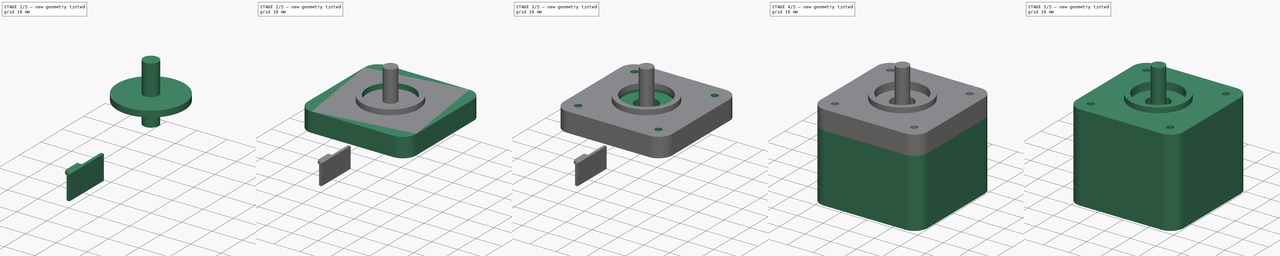
[diagram: build sequence overview — one tinted view per stage of 5, left to right]
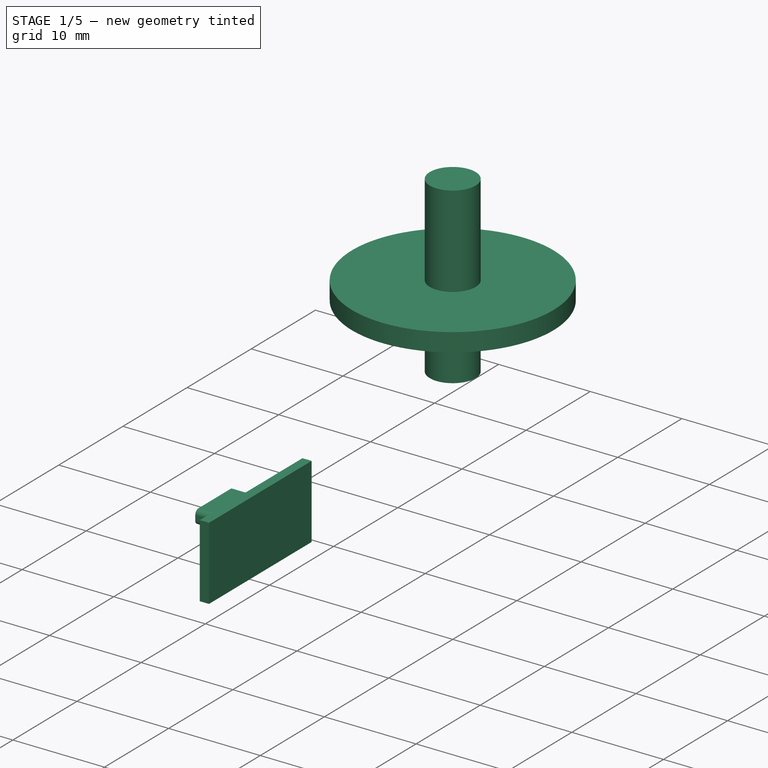
[diagram: stage 1 of 5 — iso view after this stage's code; geometry added in this stage tinted green]
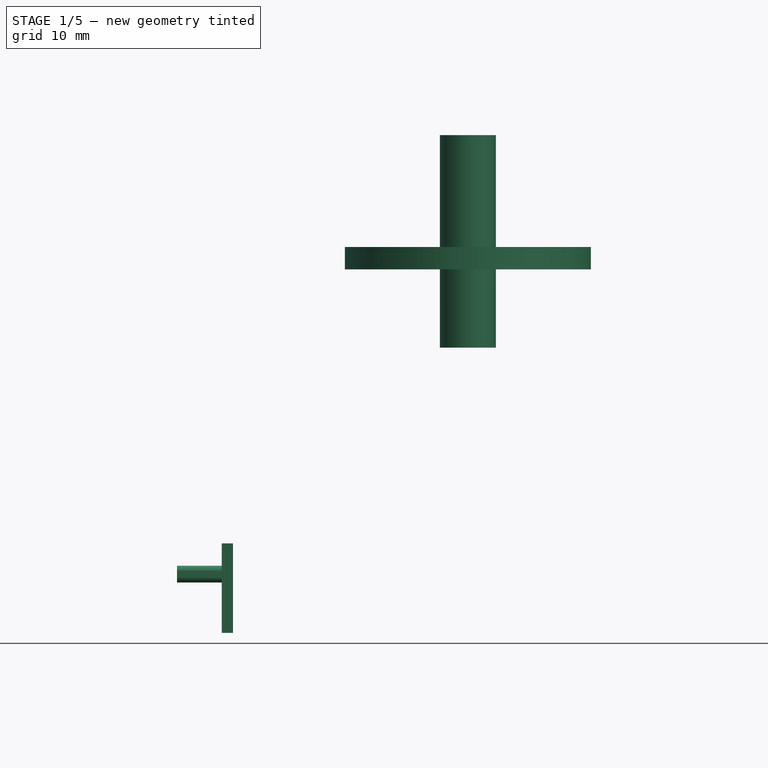
[diagram: stage 1 of 5 — front view after this stage's code; geometry added in this stage tinted green]
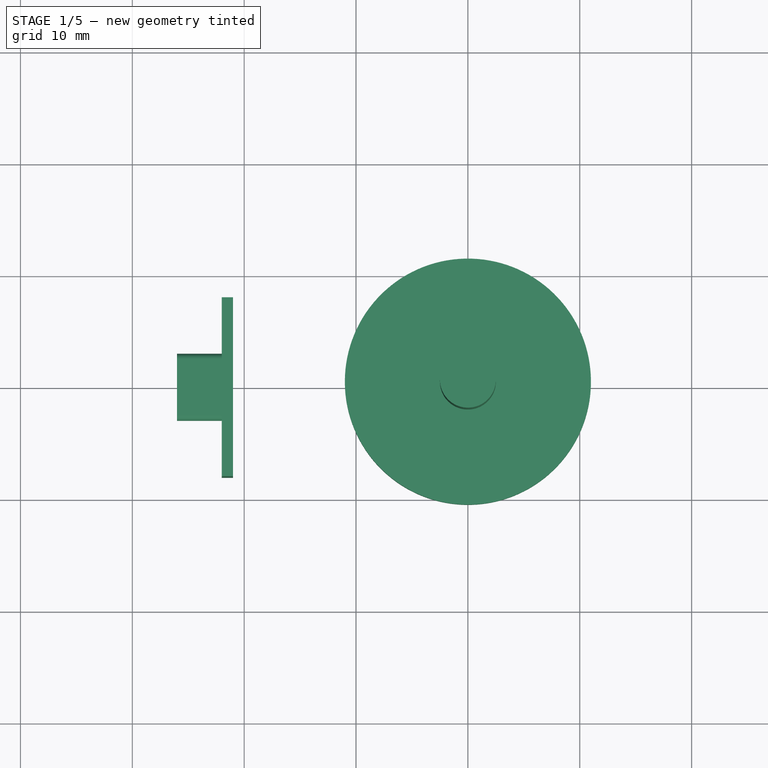
[diagram: stage 1 of 5 — top view after this stage's code; geometry added in this stage tinted green]
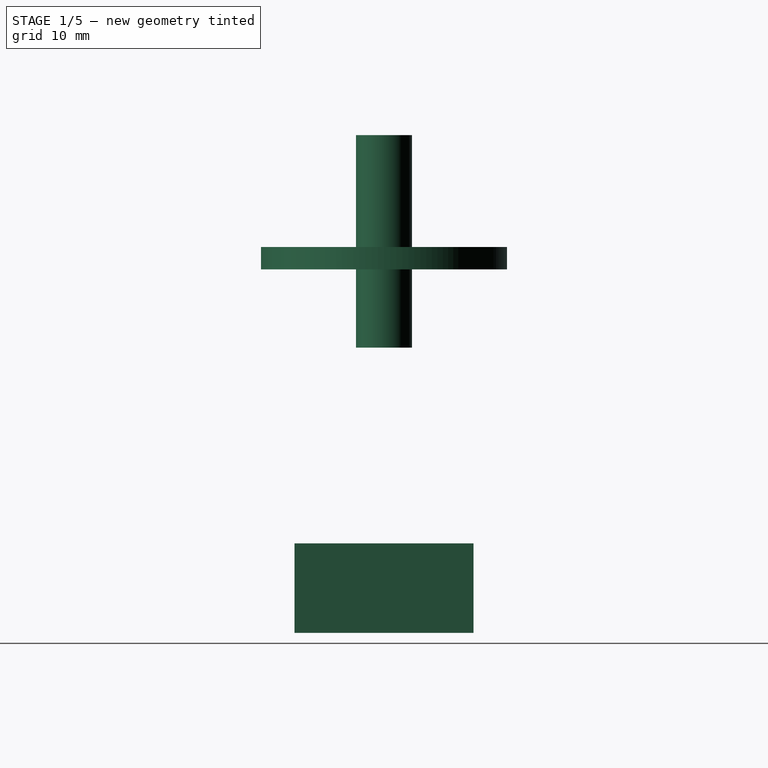
[diagram: stage 1 of 5 — right view after this stage's code; geometry added in this stage tinted green]
FCSTD DOCUMENT  (FreeCAD 0.16R6704 (Git))
Label: 17PM-K044
License: All rights reserved
LicenseURL: http://en.wikipedia.org/wiki/All_rights_reserved
objects: Sketcher::SketchObject×11, PartDesign::Pad×7, Part::Fuse×5, PartDesign::Pocket×4, Part::Common×1, Part::MultiFuse×1
note: 40 computed .brp shape members not serialized (recipe doc carries the construction recipe); baked Part::Feature solids carry a one-line shape summary decoded from their .brp

FEATURE [Sketcher::SketchObject] Sketch006
  Placement = pos=(0,0,34) rot=(0,0,1;0rad)
  sketch-geometry (1):
    g0: Circle CenterX=0 CenterY=0 CenterZ=0 NormalX=0 NormalY=0 NormalZ=1 Radius=11
  constraints (2):
    c: Radius(g0) = 11
    c: Coincident(g0,g-1)
FEATURE [PartDesign::Pad] Pad003  label="上部突起パッド"
  Length = 2
  Length2 = 100
  Placement = pos=(0,0,34) rot=(0,0,1;0rad)
  Sketch = -> Sketch006
  Type = 0
FEATURE [Sketcher::SketchObject] Sketch008
  Placement = pos=(0,0,27) rot=(0,0,1;0rad)
  sketch-geometry (1):
    g0: Circle CenterX=0 CenterY=0 CenterZ=0 NormalX=0 NormalY=0 NormalZ=1 Radius=2.5
  constraints (2):
    c: Radius(g0) = 2.5
    c: Coincident(g0,g-1)
FEATURE [PartDesign::Pad] Pad004  label="軸"
  Length = 19
  Length2 = 100
  Placement = pos=(0,0,27) rot=(0,0,1;0rad)
  Sketch = -> Sketch008
  Type = 0
FEATURE [Sketcher::SketchObject] Sketch010
  Placement = pos=(-21,0,0) rot=(0.57735,0.57735,0.57735;2.0944rad)
  sketch-geometry (4):
    g0: LineSegment StartX=8 StartY=9.5 StartZ=0 EndX=-8 EndY=9.5 EndZ=0
    g1: LineSegment StartX=-8 StartY=9.5 StartZ=0 EndX=-8 EndY=1.5 EndZ=0
    g2: LineSegment StartX=-8 StartY=1.5 StartZ=0 EndX=8 EndY=1.5 EndZ=0
    g3: LineSegment StartX=8 StartY=1.5 StartZ=0 EndX=8 EndY=9.5 EndZ=0
  constraints (12):
    c: Coincident(g0,g1)
    c: Coincident(g1,g2)
    c: Coincident(g2,g3)
    c: Coincident(g3,g0)
    c: Horizontal(g0)
    c: Horizontal(g2)
    c: Vertical(g1)
    c: Vertical(g3)
    c: DistanceX(g0,g0) = 16
    c: DistanceY(g1,g1) = 8
    c: DistanceY(g0) = 9.5
    c: Symmetric(g1,g2,g-2)
FEATURE [PartDesign::Pad] Pad006  label="ワイヤターミナル"
  Length = 1
  Length2 = 100
  Placement = pos=(-21,0,0) rot=(0.57735,0.57735,0.57735;2.0944rad)
  Reversed = true
  Sketch = -> Sketch010
  Type = 0
FEATURE [Sketcher::SketchObject] Sketch011
  Placement = pos=(-22,0,0) rot=(0.57735,0.57735,0.57735;2.0944rad)
  sketch-geometry (8):
    g0: LineSegment StartX=2.5 StartY=7.5 StartZ=0 EndX=-2.5 EndY=7.5 EndZ=0
    g1: LineSegment StartX=-3 StartY=7 StartZ=0 EndX=-3 EndY=6.5 EndZ=0
    g2: LineSegment StartX=-2.5 StartY=6 StartZ=0 EndX=2.5 EndY=6 EndZ=0
    g3: LineSegment StartX=3 StartY=6.5 StartZ=0 EndX=3 EndY=7 EndZ=0
    g4: ArcOfCircle CenterX=2.5 CenterY=7 CenterZ=0 NormalX=0 NormalY=0 NormalZ=1 Radius=0.5 StartAngle=0 EndAngle=1.5708
    g5: ArcOfCircle CenterX=2.5 CenterY=6.5 CenterZ=0 NormalX=0 NormalY=0 NormalZ=1 Radius=0.5 StartAngle=4.71239 EndAngle=6.28319
    g6: ArcOfCircle CenterX=-2.5 CenterY=6.5 CenterZ=0 NormalX=0 NormalY=0 NormalZ=1 Radius=0.5 StartAngle=3.14159 EndAngle=4.71239
    g7: ArcOfCircle CenterX=-2.5 CenterY=7 CenterZ=0 NormalX=0 NormalY=0 NormalZ=1 Radius=0.5 StartAngle=1.5708 EndAngle=3.14159
  constraints (20):
    c: Horizontal(g0)
    c: Horizontal(g2)
    c: Vertical(g1)
    c: Vertical(g3)
    c: Tangent(g0,g4) = -1.5708
    c: Tangent(g3,g4) = -1.5708
    c: Tangent(g2,g5) = -1.5708
    c: Tangent(g3,g5) = -1.5708
    c: Tangent(g2,g6) = -1.5708
    c: Tangent(g1,g6) = -1.5708
    c: Tangent(g1,g7) = -1.5708
    c: Tangent(g0,g7) = -1.5708
    c: Radius(g5) = 0.5
    c: Radius(g4) = 0.5
    c: Radius(g7) = 0.5
    c: Radius(g6) = 0.5
    c: DistanceY(g1,g1) = 0.5
    c: DistanceX(g2,g2) = 5
    c: Symmetric(g4,g7,g-2)
    c: DistanceY(g5) = 6.5
FEATURE [PartDesign::Pad] Pad007  label="ワイヤ"
  Length = 4
  Length2 = 100
  Placement = pos=(-22,0,0) rot=(0.57735,0.57735,0.57735;2.0944rad)
  Reversed = true
  Sketch = -> Sketch011
  Type = 0
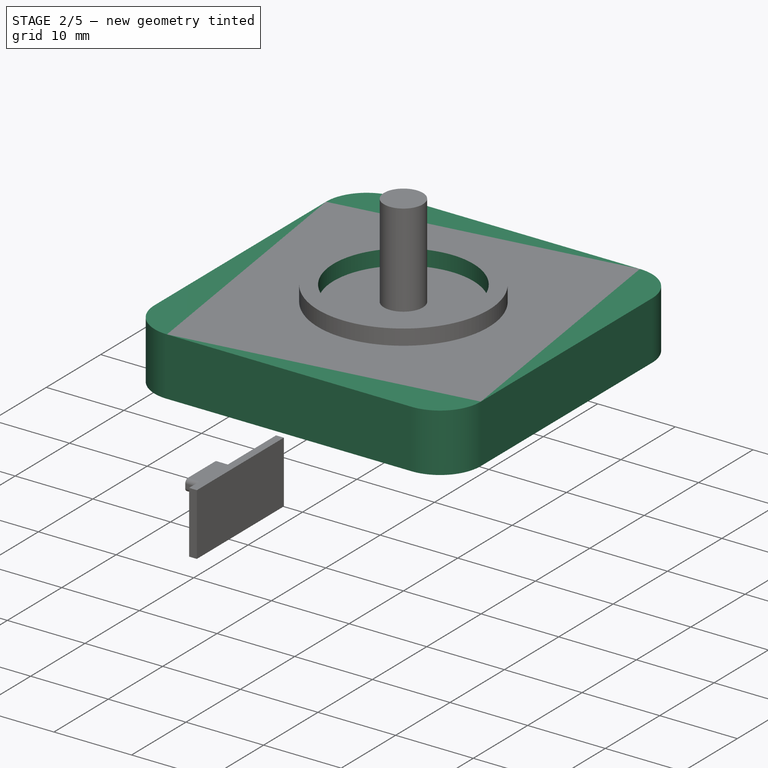
[diagram: stage 2 of 5 — iso view after this stage's code; geometry added in this stage tinted green]
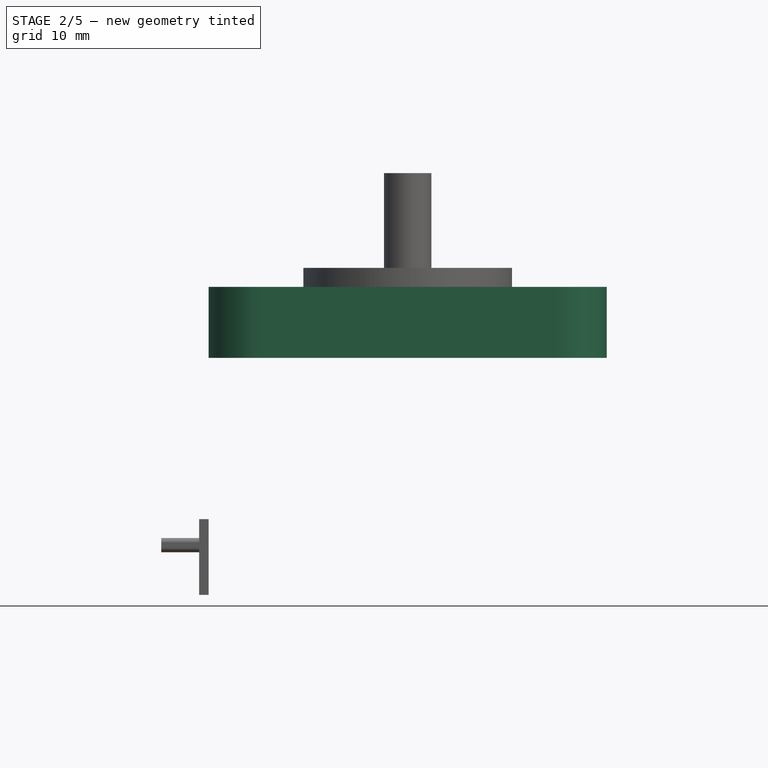
[diagram: stage 2 of 5 — front view after this stage's code; geometry added in this stage tinted green]
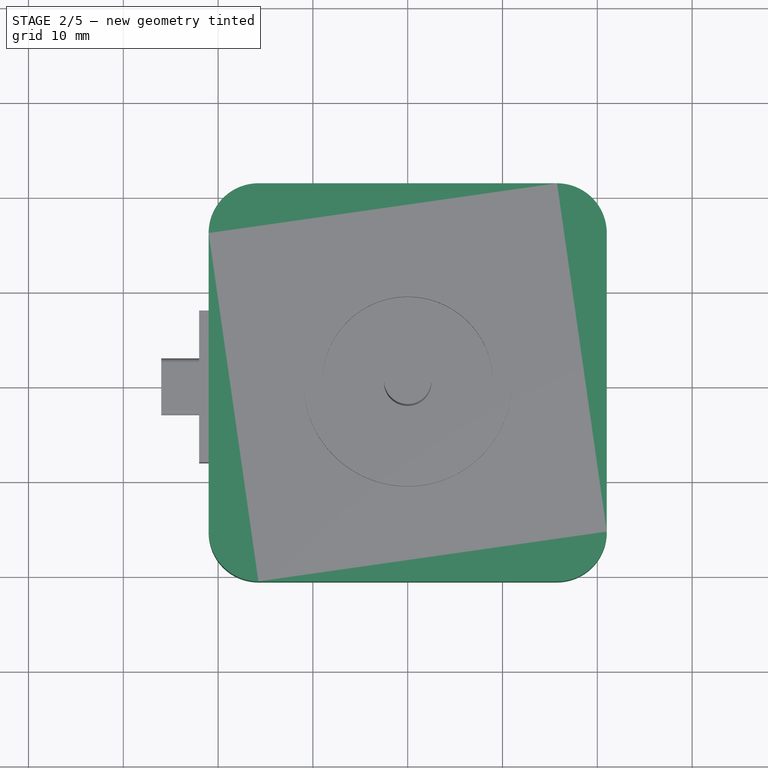
[diagram: stage 2 of 5 — top view after this stage's code; geometry added in this stage tinted green]
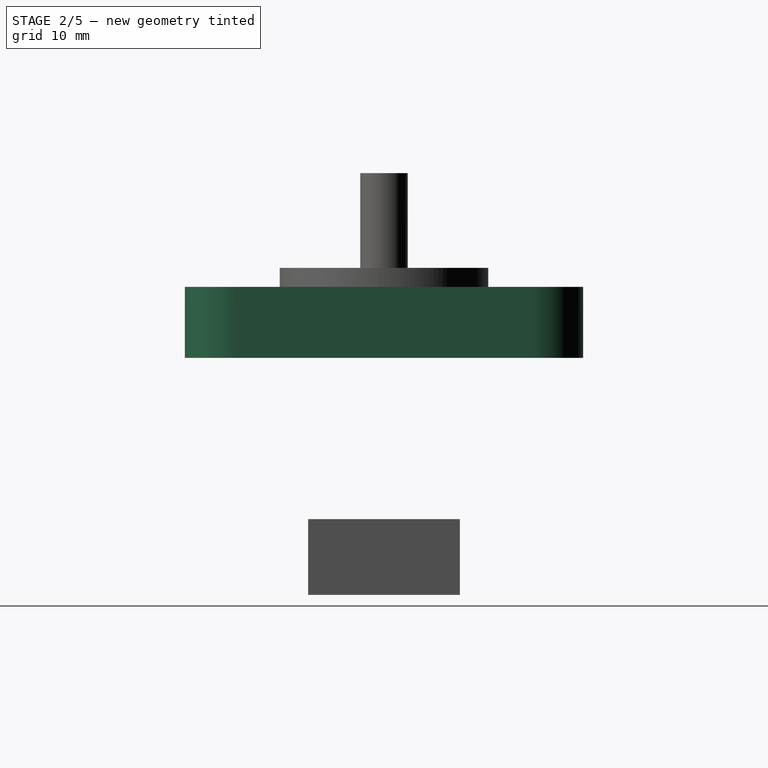
[diagram: stage 2 of 5 — right view after this stage's code; geometry added in this stage tinted green]
FEATURE [Sketcher::SketchObject] Sketch002  label="上面スケッチ"
  Placement = pos=(0,0,26.5) rot=(0,0,1;0rad)
  sketch-geometry (8):
    g0: LineSegment StartX=-15.75 StartY=21 StartZ=0 EndX=15.75 EndY=21 EndZ=0
    g1: LineSegment StartX=21 StartY=15.75 StartZ=0 EndX=21 EndY=-15.75 EndZ=0
    g2: LineSegment StartX=15.75 StartY=-21 StartZ=0 EndX=-15.75 EndY=-21 EndZ=0
    g3: LineSegment StartX=-21 StartY=-15.75 StartZ=0 EndX=-21 EndY=15.75 EndZ=0
    g4: ArcOfCircle CenterX=15.75 CenterY=15.75 CenterZ=0 NormalX=0 NormalY=0 NormalZ=1 Radius=5.25 StartAngle=0 EndAngle=1.5708
    g5: ArcOfCircle CenterX=-15.75 CenterY=15.75 CenterZ=0 NormalX=0 NormalY=0 NormalZ=1 Radius=5.25 StartAngle=1.5708 EndAngle=3.14159
    g6: ArcOfCircle CenterX=-15.75 CenterY=-15.75 CenterZ=0 NormalX=0 NormalY=0 NormalZ=1 Radius=5.25 StartAngle=3.14159 EndAngle=4.71239
    g7: ArcOfCircle CenterX=15.75 CenterY=-15.75 CenterZ=0 NormalX=0 NormalY=0 NormalZ=1 Radius=5.25 StartAngle=4.71239 EndAngle=6.28319
  constraints (19):
    c: Horizontal(g0)
    c: Horizontal(g2)
    c: Vertical(g1)
    c: Vertical(g3)
    c: Tangent(g1,g4) = 1.5708
    c: Tangent(g0,g4) = 1.5708
    c: Tangent(g3,g5) = 1.5708
    c: Tangent(g0,g5) = 1.5708
    c: Tangent(g3,g6) = 1.5708
    c: Tangent(g2,g6) = 1.5708
    c: Tangent(g2,g7) = 1.5708
    c: Tangent(g1,g7) = 1.5708
    c: DistanceX(g0,g0) = 31.5
    c: DistanceY(g3,g3) = 31.5
    c: Radius(g5) = 5.25
    c: Radius(g4) = 5.25
    c: Radius(g7) = 5.25
    c: Symmetric(g0,g2,g-1)
    c: Symmetric(g3,g1,g-2)
FEATURE [PartDesign::Pad] Pad002  label="上部シルバー"
  Length = 7.5
  Length2 = 100
  Placement = pos=(0,0,26.5) rot=(0,0,1;0rad)
  Sketch = -> Sketch002
  Type = 0
FEATURE [Sketcher::SketchObject] Sketch007
  Placement = pos=(0,0,36) rot=(0,0,1;0rad)
  Support = -> Pad003 [Face3]
  sketch-geometry (1):
    g0: Circle CenterX=0 CenterY=0 CenterZ=0 NormalX=0 NormalY=0 NormalZ=1 Radius=9
  constraints (2):
    c: Radius(g0) = 9
    c: Coincident(g0,g-1)
FEATURE [PartDesign::Pocket] Pocket003  label="上部突起リング"
  Length = 2
  Placement = pos=(0,0,34) rot=(0,0,1;0rad)
  Sketch = -> Sketch007
  Type = 0
FEATURE [Part::Fuse] Fusion001
  Base = -> Pocket003
  Tool = -> Pad004
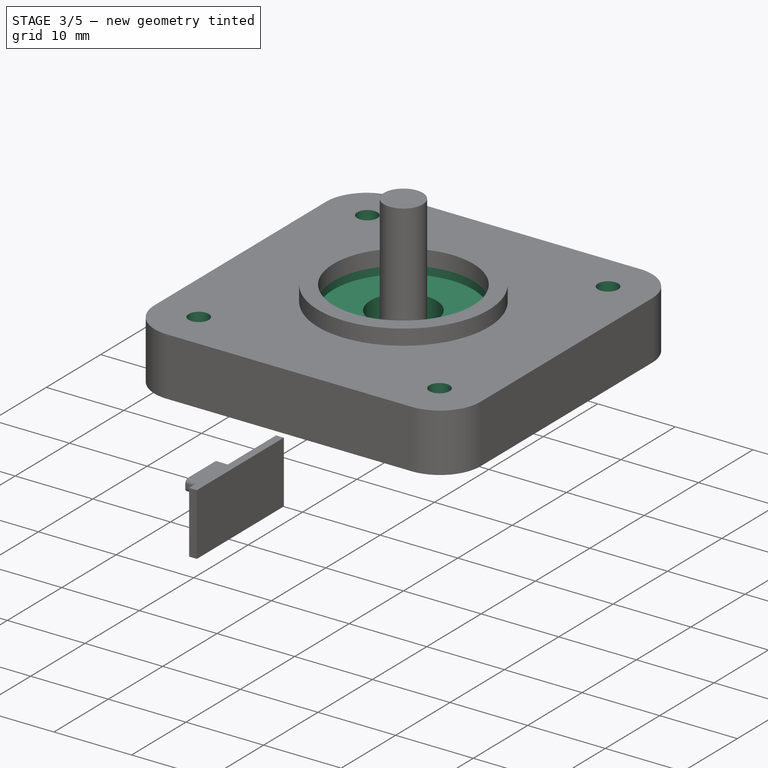
[diagram: stage 3 of 5 — iso view after this stage's code; geometry added in this stage tinted green]
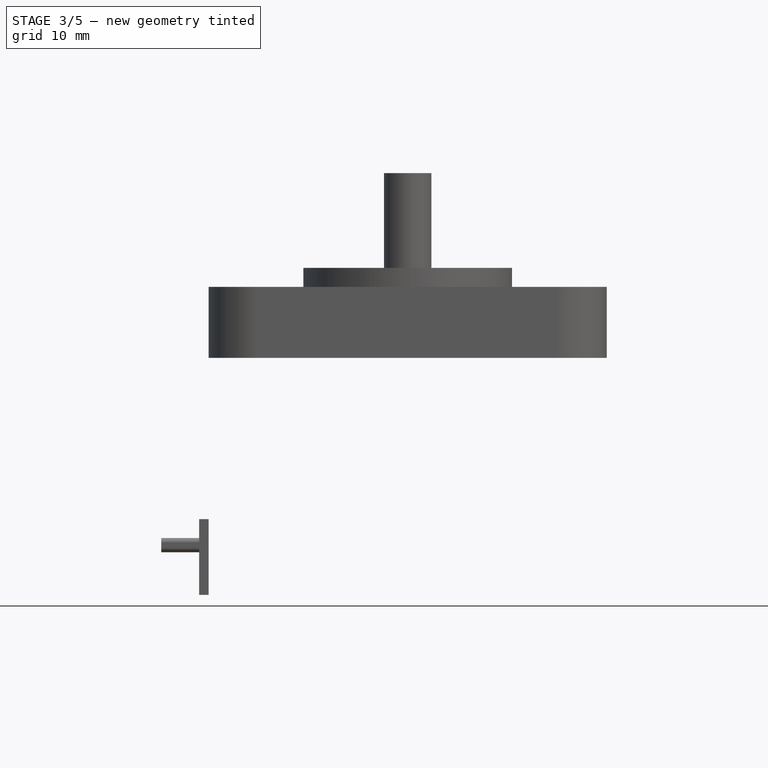
[diagram: stage 3 of 5 — front view after this stage's code; geometry added in this stage tinted green]
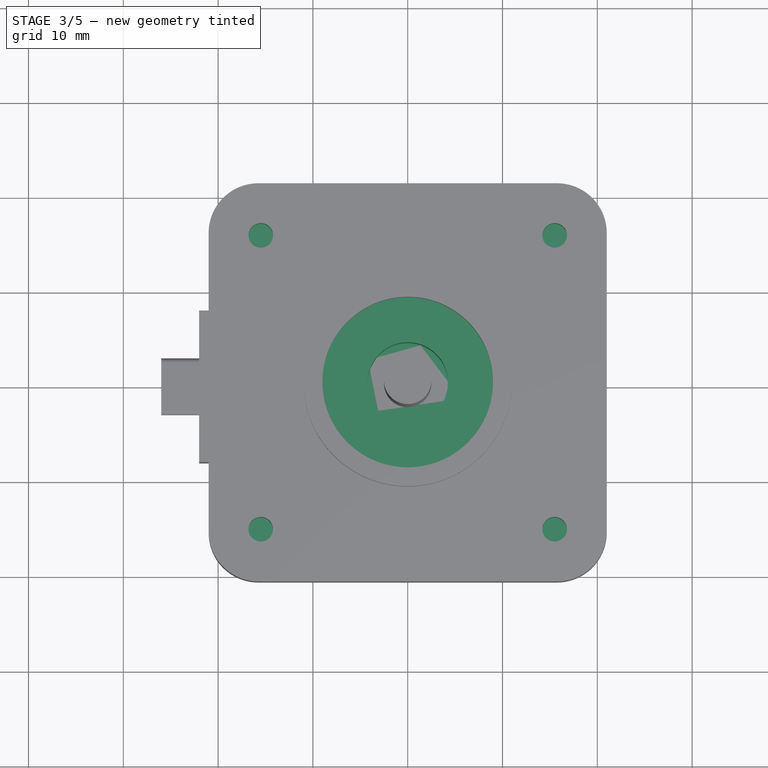
[diagram: stage 3 of 5 — top view after this stage's code; geometry added in this stage tinted green]
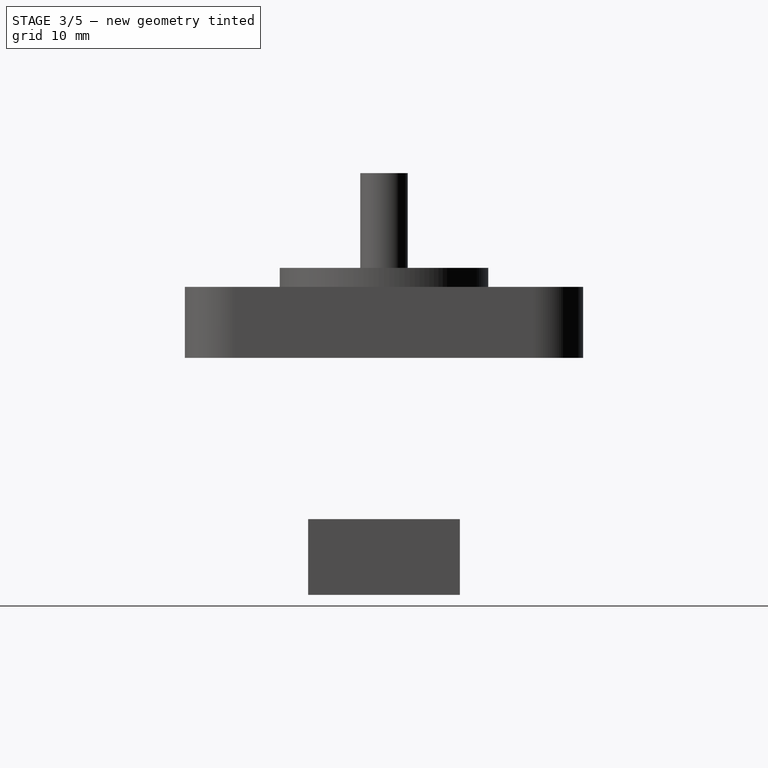
[diagram: stage 3 of 5 — right view after this stage's code; geometry added in this stage tinted green]
FEATURE [Sketcher::SketchObject] Sketch003
  Placement = pos=(0,0,34) rot=(0,0,1;0rad)
  Support = -> Pad002 [Face10]
  sketch-geometry (1):
    g0: Circle CenterX=0 CenterY=0 CenterZ=0 NormalX=0 NormalY=0 NormalZ=1 Radius=9
  constraints (2):
    c: Coincident(g0,g-1)
    c: Radius(g0) = 9
FEATURE [PartDesign::Pocket] Pocket  label="上面1mm深"
  Length = 1
  Placement = pos=(0,0,26.5) rot=(0,0,1;0rad)
  Sketch = -> Sketch003
  Type = 0
FEATURE [Sketcher::SketchObject] Sketch004
  Placement = pos=(0,0,33) rot=(0,0,1;0rad)
  Support = -> Pocket [Face12]
  sketch-geometry (1):
    g0: Circle CenterX=0 CenterY=0 CenterZ=0 NormalX=0 NormalY=0 NormalZ=1 Radius=4.25
  constraints (2):
    c: Radius(g0) = 4.25
    c: Coincident(g0,g-1)
FEATURE [PartDesign::Pocket] Pocket001  label="上面6mm深"
  Length = 6
  Placement = pos=(0,0,26.5) rot=(0,0,1;0rad)
  Sketch = -> Sketch004
  Type = 0
FEATURE [Sketcher::SketchObject] Sketch005
  Placement = pos=(0,0,34) rot=(0,0,1;0rad)
  Support = -> Pocket001 [Face5]
  sketch-geometry (8):
    g0: LineSegment [constr] StartX=-15.5 StartY=15.5 StartZ=0 EndX=15.5 EndY=15.5 EndZ=0
    g1: LineSegment [constr] StartX=15.5 StartY=15.5 StartZ=0 EndX=15.5 EndY=-15.5 EndZ=0
    g2: LineSegment [constr] StartX=15.5 StartY=-15.5 StartZ=0 EndX=-15.5 EndY=-15.5 EndZ=0
    g3: LineSegment [constr] StartX=-15.5 StartY=-15.5 StartZ=0 EndX=-15.5 EndY=15.5 EndZ=0
    g4: Circle CenterX=15.5 CenterY=15.5 CenterZ=0 NormalX=0 NormalY=0 NormalZ=1 Radius=1.295
    g5: Circle CenterX=-15.5 CenterY=15.5 CenterZ=0 NormalX=0 NormalY=0 NormalZ=1 Radius=1.295
    g6: Circle CenterX=-15.5 CenterY=-15.5 CenterZ=0 NormalX=0 NormalY=0 NormalZ=1 Radius=1.295
    g7: Circle CenterX=15.5 CenterY=-15.5 CenterZ=0 NormalX=0 NormalY=0 NormalZ=1 Radius=1.295
  constraints (20):
    c: Coincident(g0,g1)
    c: Coincident(g1,g2)
    c: Coincident(g2,g3)
    c: Coincident(g3,g0)
    c: Horizontal(g0)
    c: Horizontal(g2)
    c: Vertical(g1)
    c: Vertical(g3)
    c: DistanceX(g0,g0) = 31
    c: DistanceY(g3,g3) = 31
    c: Symmetric(g2,g1,g-2)
    c: Symmetric(g0,g2,g-1)
    c: Radius(g5) = 1.295
    c: Radius(g6) = 1.295
    c: Radius(g4) = 1.295
    c: Radius(g7) = 1.295
    c: Coincident(g5,g0)
    c: Coincident(g6,g2)
    c: Coincident(g7,g1)
    c: Coincident(g4,g0)
FEATURE [PartDesign::Pocket] Pocket002  label="M3ネジ穴"
  Length = 4
  Placement = pos=(0,0,26.5) rot=(0,0,1;0rad)
  Sketch = -> Sketch005
  Type = 0
FEATURE [Part::Common] Common  label="上部シルバー結合"
  Base = -> Pocket001
  Tool = -> Pocket002
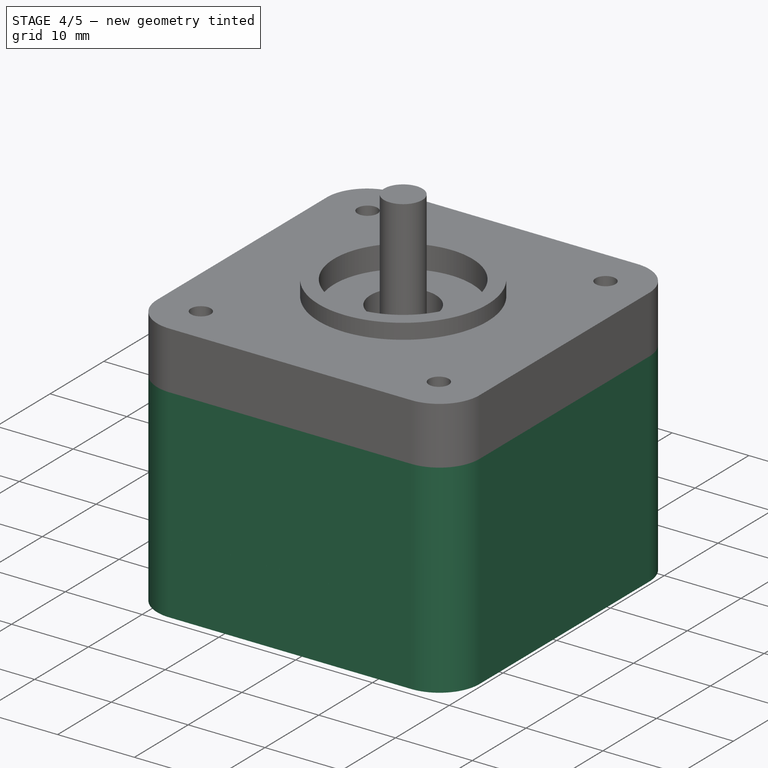
[diagram: stage 4 of 5 — iso view after this stage's code; geometry added in this stage tinted green]
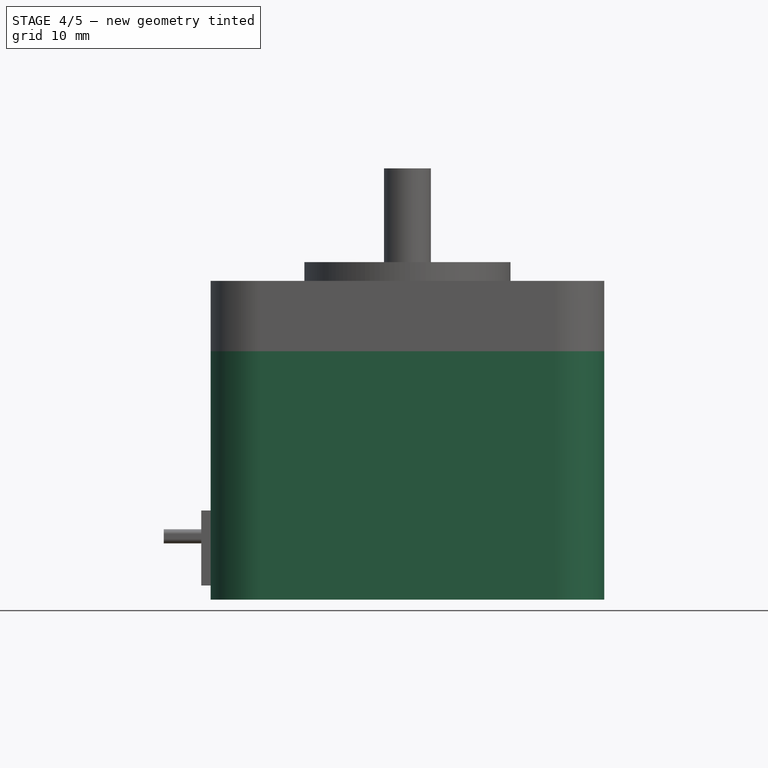
[diagram: stage 4 of 5 — front view after this stage's code; geometry added in this stage tinted green]
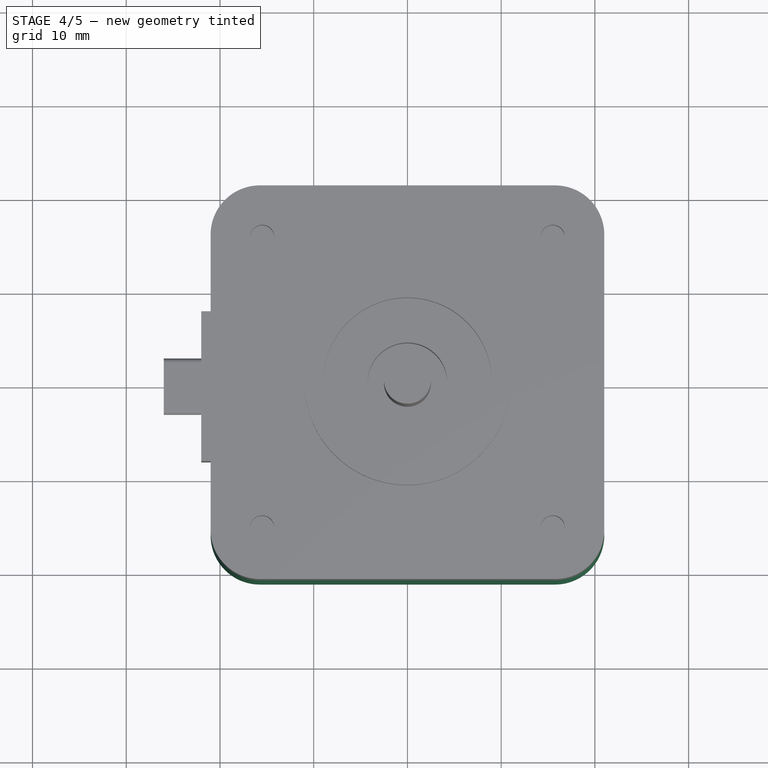
[diagram: stage 4 of 5 — top view after this stage's code; geometry added in this stage tinted green]
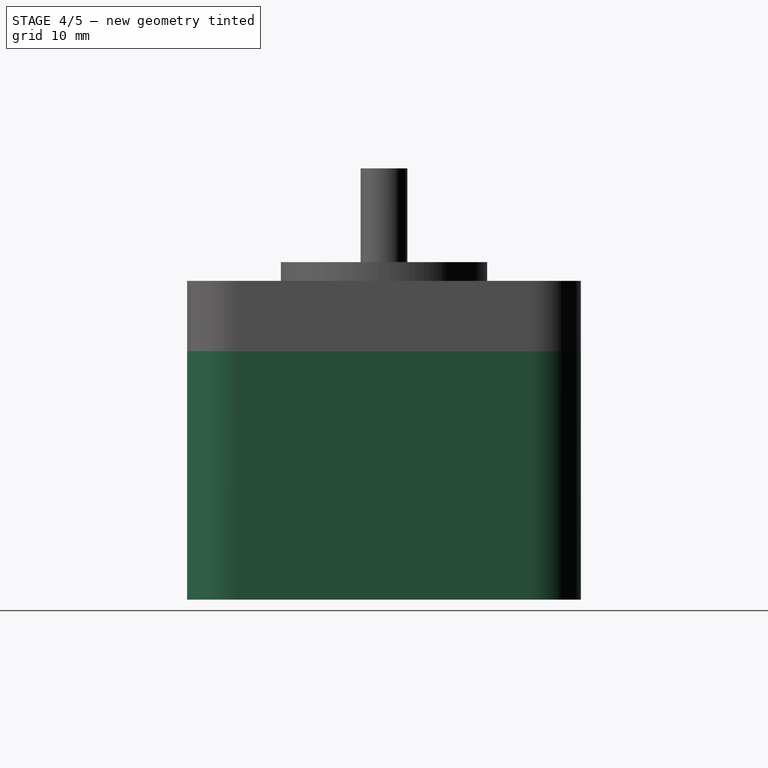
[diagram: stage 4 of 5 — right view after this stage's code; geometry added in this stage tinted green]
FEATURE [Sketcher::SketchObject] Sketch  label="底面スケッチ"
  sketch-geometry (8):
    g0: LineSegment StartX=-15.75 StartY=21 StartZ=0 EndX=15.75 EndY=21 EndZ=0
    g1: LineSegment StartX=21 StartY=15.75 StartZ=0 EndX=21 EndY=-15.75 EndZ=0
    g2: LineSegment StartX=15.75 StartY=-21 StartZ=0 EndX=-15.75 EndY=-21 EndZ=0
    g3: LineSegment StartX=-21 StartY=-15.75 StartZ=0 EndX=-21 EndY=15.75 EndZ=0
    g4: ArcOfCircle CenterX=15.75 CenterY=15.75 CenterZ=0 NormalX=0 NormalY=0 NormalZ=1 Radius=5.25 StartAngle=0 EndAngle=1.5708
    g5: ArcOfCircle CenterX=-15.75 CenterY=15.75 CenterZ=0 NormalX=0 NormalY=0 NormalZ=1 Radius=5.25 StartAngle=1.5708 EndAngle=3.14159
    g6: ArcOfCircle CenterX=-15.75 CenterY=-15.75 CenterZ=0 NormalX=0 NormalY=0 NormalZ=1 Radius=5.25 StartAngle=3.14159 EndAngle=4.71239
    g7: ArcOfCircle CenterX=15.75 CenterY=-15.75 CenterZ=0 NormalX=0 NormalY=0 NormalZ=1 Radius=5.25 StartAngle=4.71239 EndAngle=6.28319
  constraints (19):
    c: Horizontal(g0)
    c: Horizontal(g2)
    c: Vertical(g1)
    c: Vertical(g3)
    c: Tangent(g1,g4) = 1.5708
    c: Tangent(g0,g4) = 1.5708
    c: Tangent(g3,g5) = 1.5708
    c: Tangent(g0,g5) = 1.5708
    c: Tangent(g3,g6) = 1.5708
    c: Tangent(g2,g6) = 1.5708
    c: Tangent(g2,g7) = 1.5708
    c: Tangent(g1,g7) = 1.5708
    c: Radius(g4) = 5.25
    c: Radius(g7) = 5.25
    c: Radius(g6) = 5.25
    c: DistanceX(g0,g0) = 31.5
    c: DistanceY(g3,g3) = 31.5
    c: Symmetric(g2,g0,g-1)
    c: Symmetric(g3,g1,g-2)
FEATURE [PartDesign::Pad] Pad  label="下部シルバー"
  Length = 9.5
  Length2 = 100
  Sketch = -> Sketch
  Type = 0
FEATURE [Sketcher::SketchObject] Sketch001  label="中部黒スケッチ"
  Placement = pos=(0,0,9.5) rot=(0,0,1;0rad)
  sketch-geometry (8):
    g0: LineSegment StartX=-15.75 StartY=21 StartZ=0 EndX=15.75 EndY=21 EndZ=0
    g1: LineSegment StartX=21 StartY=15.75 StartZ=0 EndX=21 EndY=-15.75 EndZ=0
    g2: LineSegment StartX=15.75 StartY=-21 StartZ=0 EndX=-15.75 EndY=-21 EndZ=0
    g3: LineSegment StartX=-21 StartY=-15.75 StartZ=0 EndX=-21 EndY=15.75 EndZ=0
    g4: ArcOfCircle CenterX=-15.75 CenterY=15.75 CenterZ=0 NormalX=0 NormalY=0 NormalZ=1 Radius=5.25 StartAngle=1.5708 EndAngle=3.14159
    g5: ArcOfCircle CenterX=15.75 CenterY=15.75 CenterZ=0 NormalX=0 NormalY=0 NormalZ=1 Radius=5.25 StartAngle=0 EndAngle=1.5708
    g6: ArcOfCircle CenterX=15.75 CenterY=-15.75 CenterZ=0 NormalX=0 NormalY=0 NormalZ=1 Radius=5.25 StartAngle=4.71239 EndAngle=6.28319
    g7: ArcOfCircle CenterX=-15.75 CenterY=-15.75 CenterZ=0 NormalX=0 NormalY=0 NormalZ=1 Radius=5.25 StartAngle=3.14159 EndAngle=4.71239
  constraints (19):
    c: Horizontal(g0)
    c: Horizontal(g2)
    c: Vertical(g1)
    c: Vertical(g3)
    c: Tangent(g0,g4) = 1.5708
    c: Tangent(g3,g4) = 1.5708
    c: Tangent(g0,g5) = 1.5708
    c: Tangent(g1,g5) = 1.5708
    c: Tangent(g1,g6) = 1.5708
    c: Tangent(g2,g6) = 1.5708
    c: Tangent(g3,g7) = 1.5708
    c: Tangent(g2,g7) = 1.5708
    c: DistanceY(g3,g3) = 31.5
    c: DistanceX(g0,g0) = 31.5
    c: Radius(g4) = 5.25
    c: Radius(g5) = 5.25
    c: Radius(g6) = 5.25
    c: Symmetric(g0,g2,g-1)
    c: Symmetric(g2,g2,g-2)
FEATURE [PartDesign::Pad] Pad001  label="中部ブラック"
  Length = 17
  Length2 = 100
  Placement = pos=(0,0,9.5) rot=(0,0,1;0rad)
  Sketch = -> Sketch001
  Type = 0
FEATURE [Part::Fuse] Fusion002
  Base = -> Common
  Tool = -> Fusion001
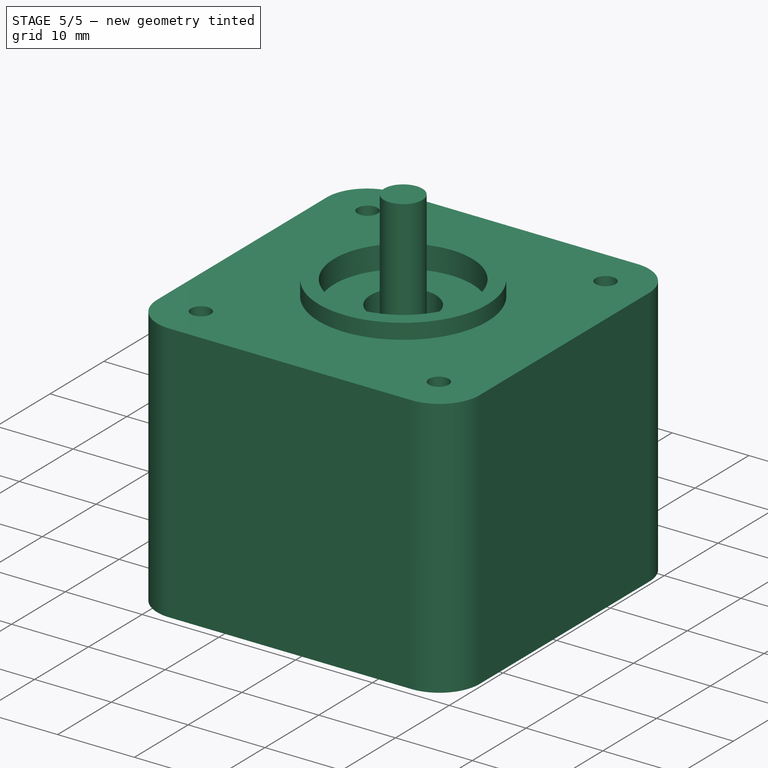
[diagram: stage 5 of 5 — iso view after this stage's code; geometry added in this stage tinted green]
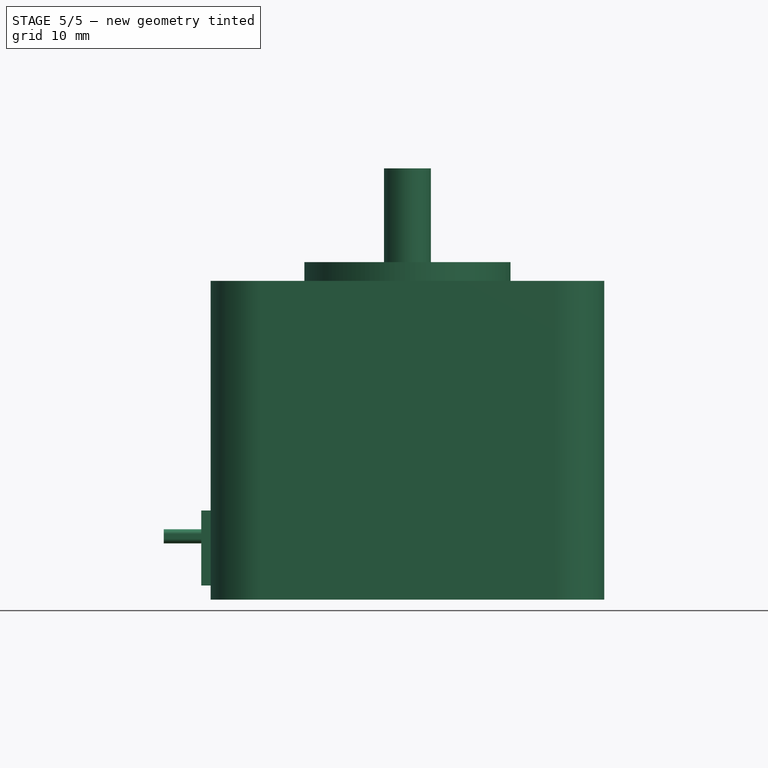
[diagram: stage 5 of 5 — front view after this stage's code; geometry added in this stage tinted green]
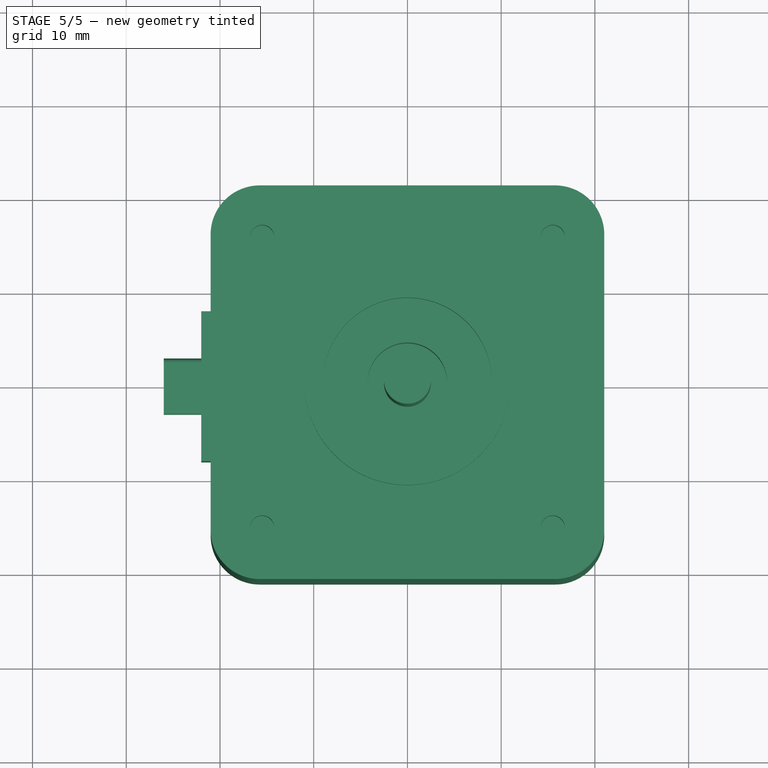
[diagram: stage 5 of 5 — top view after this stage's code; geometry added in this stage tinted green]
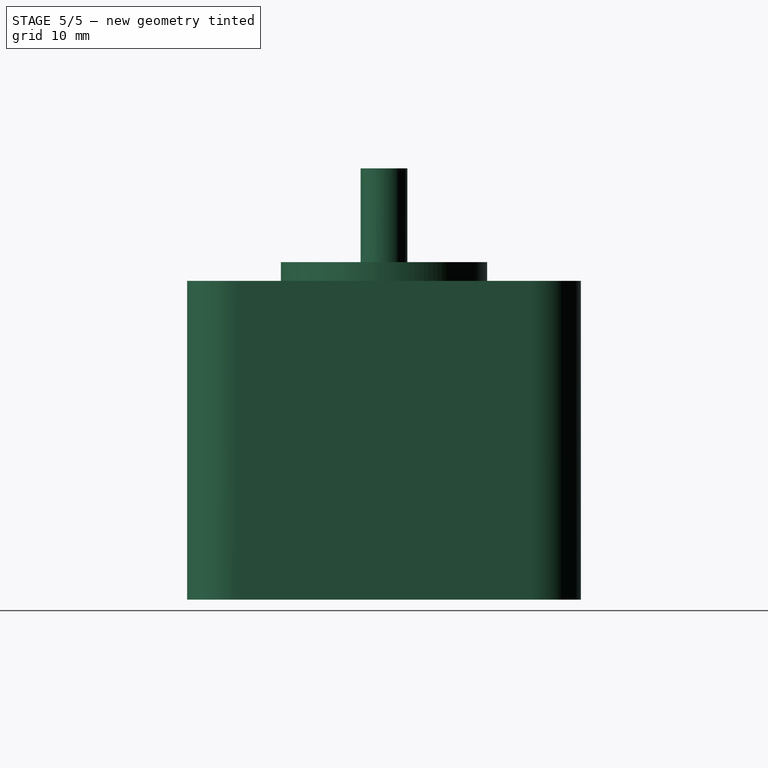
[diagram: stage 5 of 5 — right view after this stage's code; geometry added in this stage tinted green]
FEATURE [Part::Fuse] Fusion
  Base = -> Pad
  Tool = -> Pad001
FEATURE [Part::Fuse] Fusion003  label="本体"
  Base = -> Fusion
  Tool = -> Fusion002
FEATURE [Part::Fuse] Fusion004  label="本体＋ワイヤターミナル"
  Base = -> Fusion003
  Tool = -> Pad006
FEATURE [Part::MultiFuse] Fusion005  label="最終結合"
  Shapes = -> [Fusion004,Pad007]
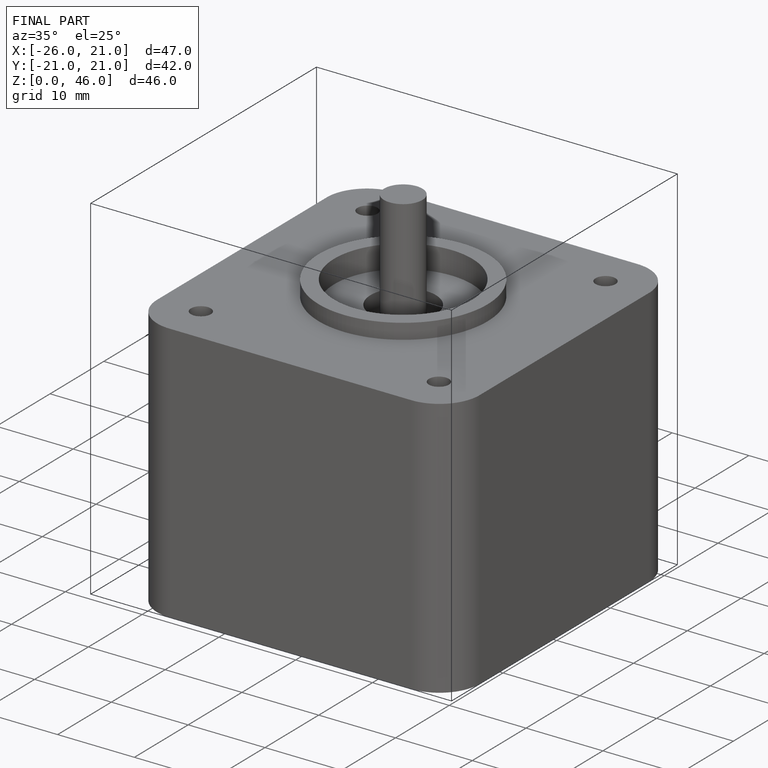
[diagram: finished part — iso view with bounding-box wireframe]
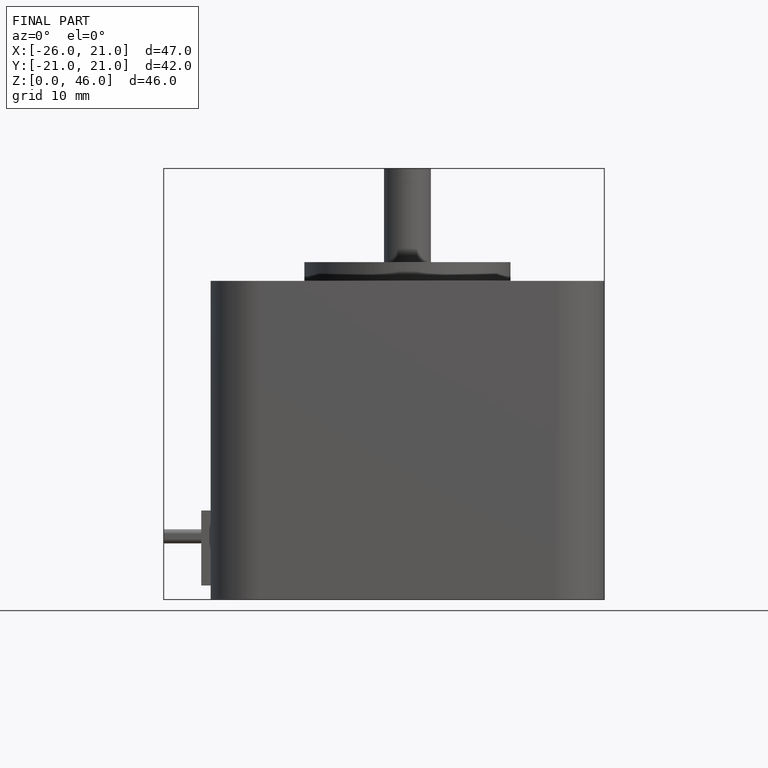
[diagram: finished part — front view with bounding-box wireframe]
